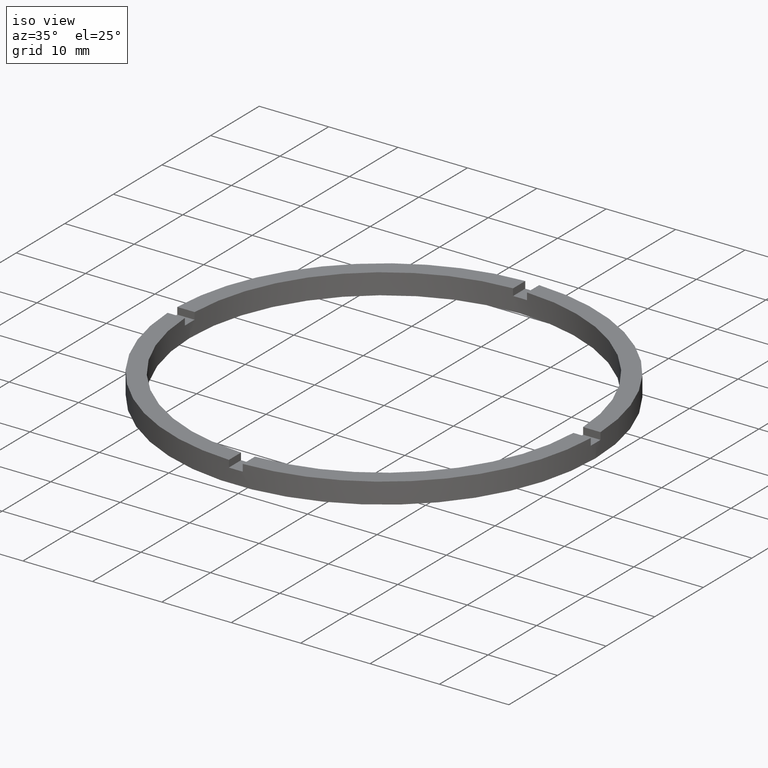
[diagram: clean part render]
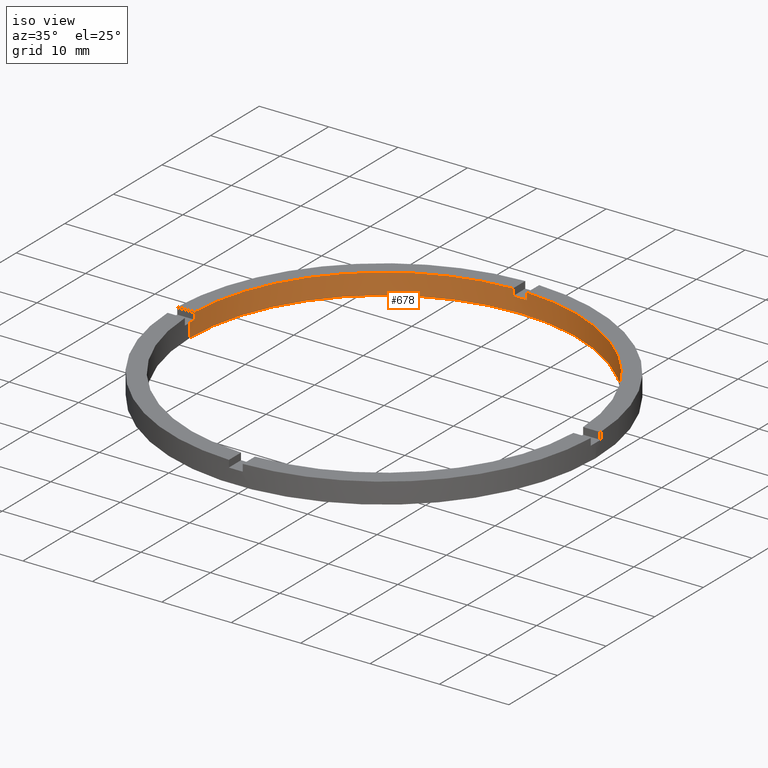
[diagram: same view with one face highlighted and labeled with its STEP entity id]
A machine part, iso view. The second image highlights one B-rep face of the part: STEP entity #678.
In plain terms, the highlighted cylindrical surface (partial cylindrical patch) has radius 28 mm, axis along (-0, -0, -1).
Its self-contained STEP definition (entity closure, byte-faithful):
#1 = VERTEX_POINT ( 'NONE', #757 ) ;
#15 = AXIS2_PLACEMENT_3D ( 'NONE', #275, #617, #88 ) ;
#18 = DIRECTION ( 'NONE',  ( -0.000000000000000000, -0.000000000000000000, -1.000000000000000000 ) ) ;
#19 = ORIENTED_EDGE ( 'NONE', *, *, #604, .F. ) ;
#36 = EDGE_CURVE ( 'NONE', #444, #713, #472, .T. ) ;
#38 = ORIENTED_EDGE ( 'NONE', *, *, #375, .F. ) ;
#40 = DIRECTION ( 'NONE',  ( 1.000000000000000000, 0.000000000000000000, 0.000000000000000000 ) ) ;
#43 = CIRCLE ( 'NONE', #59, 28.00000000000000000 ) ;
#44 = EDGE_LOOP ( 'NONE', ( #682, #172, #761, #439, #690, #313, #38, #245, #564, #226, #285, #19 ) ) ;
#59 = AXIS2_PLACEMENT_3D ( 'NONE', #659, #72, #615 ) ;
#69 = CIRCLE ( 'NONE', #480, 28.00000000000000000 ) ;
#72 = DIRECTION ( 'NONE',  ( 0.000000000000000000, 0.000000000000000000, 1.000000000000000000 ) ) ;
#88 = DIRECTION ( 'NONE',  ( 1.000000000000000000, 0.000000000000000000, 0.000000000000000000 ) ) ;
#89 = VECTOR ( 'NONE', #396, 1000.000000000000000 ) ;
#90 = FACE_OUTER_BOUND ( 'NONE', #44, .T. ) ;
#91 = LINE ( 'NONE', #750, #351 ) ;
#92 = LINE ( 'NONE', #517, #89 ) ;
#96 = EDGE_CURVE ( 'NONE', #738, #261, #701, .T. ) ;
#97 = CIRCLE ( 'NONE', #369, 28.00000000000000000 ) ;
#103 = CARTESIAN_POINT ( 'NONE',  ( 0.000000000000000000, 0.000000000000000000, 3.000000000000000000 ) ) ;
#122 = CARTESIAN_POINT ( 'NONE',  ( -1.000000000000024425, 27.98213715926644340, 3.000000000000000000 ) ) ;
#151 = AXIS2_PLACEMENT_3D ( 'NONE', #103, #210, #223 ) ;
#166 = DIRECTION ( 'NONE',  ( -0.000000000000000000, -0.000000000000000000, -1.000000000000000000 ) ) ;
#172 = ORIENTED_EDGE ( 'NONE', *, *, #612, .T. ) ;
#210 = DIRECTION ( 'NONE',  ( -0.000000000000000000, -0.000000000000000000, -1.000000000000000000 ) ) ;
#223 = DIRECTION ( 'NONE',  ( -1.000000000000000000, 0.000000000000000000, 0.000000000000000000 ) ) ;
#226 = ORIENTED_EDGE ( 'NONE', *, *, #389, .T. ) ;
#229 = LINE ( 'NONE', #421, #481 ) ;
#235 = EDGE_CURVE ( 'NONE', #698, #435, #458, .T. ) ;
#245 = ORIENTED_EDGE ( 'NONE', *, *, #747, .T. ) ;
#246 = AXIS2_PLACEMENT_3D ( 'NONE', #405, #522, #575 ) ;
#252 = DIRECTION ( 'NONE',  ( 0.000000000000000000, 0.000000000000000000, 1.000000000000000000 ) ) ;
#261 = VERTEX_POINT ( 'NONE', #268 ) ;
#268 = CARTESIAN_POINT ( 'NONE',  ( 27.98213715926645051, 0.9999999999998411271, 2.000000000000000000 ) ) ;
#271 = CARTESIAN_POINT ( 'NONE',  ( -1.000000000000024425, 27.98213715926644340, 2.000000000000000000 ) ) ;
#274 = VERTEX_POINT ( 'NONE', #320 ) ;
#275 = CARTESIAN_POINT ( 'NONE',  ( 0.000000000000000000, 0.000000000000000000, 2.000000000000000000 ) ) ;
#280 = CARTESIAN_POINT ( 'NONE',  ( 28.00000000000000000, 3.429011037612589276E-15, 2.000000000000000000 ) ) ;
#283 = DIRECTION ( 'NONE',  ( 1.000000000000000000, 0.000000000000000000, 0.000000000000000000 ) ) ;
#285 = ORIENTED_EDGE ( 'NONE', *, *, #36, .T. ) ;
#313 = ORIENTED_EDGE ( 'NONE', *, *, #235, .T. ) ;
#318 = VERTEX_POINT ( 'NONE', #280 ) ;
#320 = CARTESIAN_POINT ( 'NONE',  ( 0.9999999999999754641, 27.98213715926644696, 3.000000000000000000 ) ) ;
#322 = VERTEX_POINT ( 'NONE', #511 ) ;
#344 = CIRCLE ( 'NONE', #735, 28.00000000000000000 ) ;
#348 = CARTESIAN_POINT ( 'NONE',  ( 0.000000000000000000, 0.000000000000000000, 3.000000000000000000 ) ) ;
#351 = VECTOR ( 'NONE', #684, 1000.000000000000000 ) ;
#356 = CARTESIAN_POINT ( 'NONE',  ( -27.98213715926644696, 0.9999999999999751310, 2.000000000000000000 ) ) ;
#360 = EDGE_CURVE ( 'NONE', #572, #322, #746, .T. ) ;
#369 = AXIS2_PLACEMENT_3D ( 'NONE', #397, #585, #283 ) ;
#375 = EDGE_CURVE ( 'NONE', #582, #435, #229, .T. ) ;
#389 = EDGE_CURVE ( 'NONE', #572, #444, #43, .T. ) ;
#396 = DIRECTION ( 'NONE',  ( 0.000000000000000000, 0.000000000000000000, 1.000000000000000000 ) ) ;
#397 = CARTESIAN_POINT ( 'NONE',  ( 0.000000000000000000, 0.000000000000000000, 3.000000000000000000 ) ) ;
#402 = DIRECTION ( 'NONE',  ( 0.000000000000000000, 0.000000000000000000, 1.000000000000000000 ) ) ;
#405 = CARTESIAN_POINT ( 'NONE',  ( 0.000000000000000000, 0.000000000000000000, 0.000000000000000000 ) ) ;
#421 = CARTESIAN_POINT ( 'NONE',  ( -1.000000000000024425, 27.98213715926644340, 3.000000000000000000 ) ) ;
#435 = VERTEX_POINT ( 'NONE', #271 ) ;
#439 = ORIENTED_EDGE ( 'NONE', *, *, #694, .T. ) ;
#444 = VERTEX_POINT ( 'NONE', #556 ) ;
#458 = CIRCLE ( 'NONE', #15, 28.00000000000000000 ) ;
#460 = DIRECTION ( 'NONE',  ( 1.000000000000000000, 0.000000000000000000, 0.000000000000000000 ) ) ;
#472 = LINE ( 'NONE', #737, #732 ) ;
#480 = AXIS2_PLACEMENT_3D ( 'NONE', #348, #402, #460 ) ;
#481 = VECTOR ( 'NONE', #166, 1000.000000000000000 ) ;
#511 = CARTESIAN_POINT ( 'NONE',  ( -27.98213715926644696, 0.9999999999999751310, 3.000000000000000000 ) ) ;
#517 = CARTESIAN_POINT ( 'NONE',  ( 0.9999999999999754641, 27.98213715926644696, 3.000000000000000000 ) ) ;
#522 = DIRECTION ( 'NONE',  ( 0.000000000000000000, 0.000000000000000000, 1.000000000000000000 ) ) ;
#525 = CARTESIAN_POINT ( 'NONE',  ( 0.9999999999999754641, 27.98213715926644696, 2.000000000000000000 ) ) ;
#556 = CARTESIAN_POINT ( 'NONE',  ( -28.00000000000000000, 0.000000000000000000, 2.000000000000000000 ) ) ;
#564 = ORIENTED_EDGE ( 'NONE', *, *, #360, .F. ) ;
#572 = VERTEX_POINT ( 'NONE', #356 ) ;
#575 = DIRECTION ( 'NONE',  ( 1.000000000000000000, 0.000000000000000000, 0.000000000000000000 ) ) ;
#578 = CARTESIAN_POINT ( 'NONE',  ( -28.00000000000000000, 0.000000000000000000, 0.000000000000000000 ) ) ;
#582 = VERTEX_POINT ( 'NONE', #122 ) ;
#585 = DIRECTION ( 'NONE',  ( 0.000000000000000000, 0.000000000000000000, 1.000000000000000000 ) ) ;
#588 = CYLINDRICAL_SURFACE ( 'NONE', #151, 28.00000000000000000 ) ;
#604 = EDGE_CURVE ( 'NONE', #1, #713, #605, .T. ) ;
#605 = CIRCLE ( 'NONE', #246, 28.00000000000000000 ) ;
#607 = CARTESIAN_POINT ( 'NONE',  ( -27.98213715926644696, 0.9999999999999751310, 3.000000000000000000 ) ) ;
#612 = EDGE_CURVE ( 'NONE', #318, #261, #344, .T. ) ;
#615 = DIRECTION ( 'NONE',  ( 1.000000000000000000, 0.000000000000000000, 0.000000000000000000 ) ) ;
#617 = DIRECTION ( 'NONE',  ( 0.000000000000000000, -0.000000000000000000, 1.000000000000000000 ) ) ;
#640 = CARTESIAN_POINT ( 'NONE',  ( 0.000000000000000000, 0.000000000000000000, 2.000000000000000000 ) ) ;
#645 = EDGE_CURVE ( 'NONE', #698, #274, #92, .T. ) ;
#659 = CARTESIAN_POINT ( 'NONE',  ( 0.000000000000000000, 0.000000000000000000, 2.000000000000000000 ) ) ;
#663 = EDGE_CURVE ( 'NONE', #318, #1, #91, .T. ) ;
#678 = ADVANCED_FACE ( 'NONE', ( #90 ), #588, .F. ) ;
#682 = ORIENTED_EDGE ( 'NONE', *, *, #663, .F. ) ;
#684 = DIRECTION ( 'NONE',  ( -0.000000000000000000, -0.000000000000000000, -1.000000000000000000 ) ) ;
#690 = ORIENTED_EDGE ( 'NONE', *, *, #645, .F. ) ;
#694 = EDGE_CURVE ( 'NONE', #738, #274, #69, .T. ) ;
#698 = VERTEX_POINT ( 'NONE', #525 ) ;
#701 = LINE ( 'NONE', #745, #707 ) ;
#707 = VECTOR ( 'NONE', #731, 1000.000000000000000 ) ;
#713 = VERTEX_POINT ( 'NONE', #578 ) ;
#731 = DIRECTION ( 'NONE',  ( -0.000000000000000000, -0.000000000000000000, -1.000000000000000000 ) ) ;
#732 = VECTOR ( 'NONE', #18, 1000.000000000000000 ) ;
#735 = AXIS2_PLACEMENT_3D ( 'NONE', #640, #765, #40 ) ;
#737 = CARTESIAN_POINT ( 'NONE',  ( -28.00000000000000000, 0.000000000000000000, 3.000000000000000000 ) ) ;
#738 = VERTEX_POINT ( 'NONE', #766 ) ;
#743 = VECTOR ( 'NONE', #252, 1000.000000000000000 ) ;
#745 = CARTESIAN_POINT ( 'NONE',  ( 27.98213715926645051, 0.9999999999998411271, 3.000000000000000000 ) ) ;
#746 = LINE ( 'NONE', #607, #743 ) ;
#747 = EDGE_CURVE ( 'NONE', #582, #322, #97, .T. ) ;
#750 = CARTESIAN_POINT ( 'NONE',  ( 28.00000000000000000, 3.429011037612589276E-15, 3.000000000000000000 ) ) ;
#757 = CARTESIAN_POINT ( 'NONE',  ( 28.00000000000000000, 3.429011037612589276E-15, 0.000000000000000000 ) ) ;
#761 = ORIENTED_EDGE ( 'NONE', *, *, #96, .F. ) ;
#765 = DIRECTION ( 'NONE',  ( 0.000000000000000000, 0.000000000000000000, 1.000000000000000000 ) ) ;
#766 = CARTESIAN_POINT ( 'NONE',  ( 27.98213715926645051, 0.9999999999998411271, 3.000000000000000000 ) ) ;